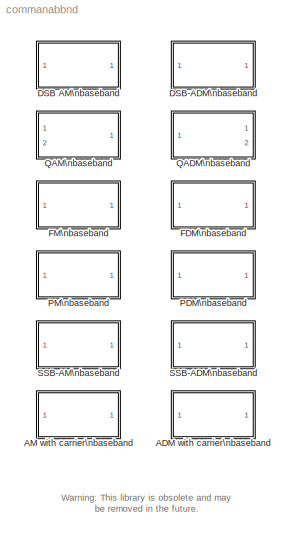
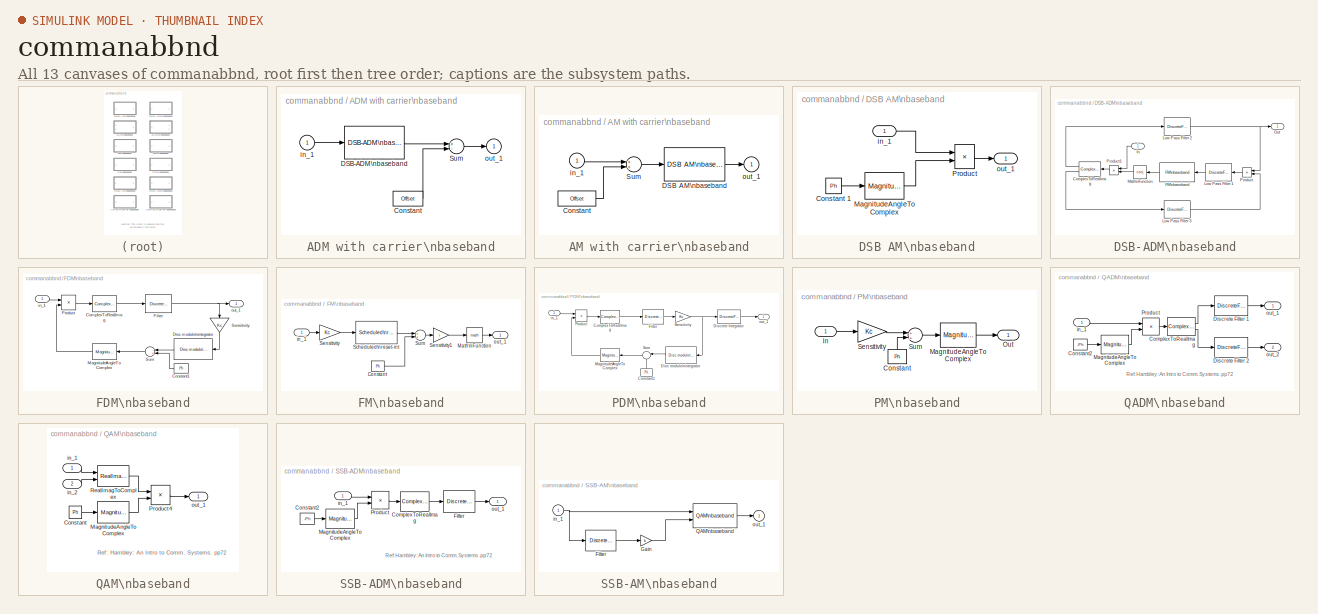
[diagram: thumbnail index - all 13 canvases of the model, root first then tree order]
MODEL commanabbnd
KIND library
BLOCK [SubSystem] ADM with carrier\nbaseband
  MaskCallbackString = ||||
  MaskDescription = Demodulate the complex envelope of an AM with TC modulated signal.
  MaskDisplay = plot(0,0,100,100,[5+4.5*[0:.3:10] 50 50 50 50+4.5*[0:10]],[85+10*[sin([0:.3:10]*pi/5).*sin([0:.3:10]*pi*2)] 85 99 75 10*sin([0:10]*pi/5)+85]);\ndisp('ADM w TC')
  MaskEnableString = on,on,on,on,on
  MaskHelp = This block demodulates the complex envelope of an AM with transport carrier modulated signal. This block requires you to specify a lowpass filter, which eliminates the carrier frequency and keeps the message signal. This block takes a complex signal.
  MaskIconFrame = on
  MaskIconOpaque = on
  MaskIconRotate = none
  MaskIconUnits = autoscale
  MaskPromptString = Output signal offset:|Lowpass filter numerator:|Lowpass filter denominator:|Initial Phase (rad):|Sample time (ts):
  MaskStyleString = edit,edit,edit,edit,edit
  MaskToolTipString = on,on,on,on,on
  MaskTunableValueString = on,on,on,on,on
  MaskType = ADM with TC CE
  MaskValueString = 1|[4.57 9.14 4.57]*.01|[1 -1.3108 .4936]|0|0.001
  MaskVarAliasString = ,,,,
  MaskVariables = Offset=@1;num=@2;den=@3;Ph=@4;ts=@5;
  MaskVisibilityString = on,on,on,on,on
  Ports = [1, 1]
  TreatAsAtomicUnit = off
BLOCK [Constant] ADM with carrier\nbaseband/Constant
  Value = Offset
BLOCK [Reference] ADM with carrier\nbaseband/DSB-ADM\nbaseband  REF=commanabbnd/DSB-ADM\nbaseband
  Ph = Ph
  Ports = [1, 1]
  SourceBlock = commanabbnd/DSB-ADM\nbaseband
  SourceType = DSB-SC ADM CE
  den = den
  num = num
  ts = ts
BLOCK [Sum] ADM with carrier\nbaseband/Sum
  Inputs = +-
  Ports = [2, 1]
BLOCK [Inport] ADM with carrier\nbaseband/in_1
BLOCK [Outport] ADM with carrier\nbaseband/out_1
  InitialOutput = 0
BLOCK [SubSystem] AM with carrier\nbaseband
  MaskCallbackString = |
  MaskDescription = Output complex envelope of an AM with transport carrier modulated signal.
  MaskDisplay = plot(0,0,100,100,[4.5*[0:10]+5 50 50 50 50+4.5*[0:.3:10]],[10*sin([0:10]*pi/5)+85 85 99 75 85+10*[sin([0:.3:10]*pi/5).*sin([0:.3:10]*pi*2)]]);\ndisp('AM w TC')
  MaskEnableString = on,on
  MaskHelp = This block causes the amplitude of the sinusoid carrier to depend on the message signal. An offset is added to the input signal before modulation. The output of this block is a complex signal. This modulation technique is not efficient.
  MaskIconFrame = on
  MaskIconOpaque = on
  MaskIconRotate = none
  MaskIconUnits = autoscale
  MaskPromptString = Input signal offset:|Initial phase (rad):
  MaskStyleString = edit,edit
  MaskToolTipString = on,on
  MaskTunableValueString = on,on
  MaskType = AM CE with TC
  MaskValueString = 1|0
  MaskVarAliasString = ,
  MaskVariables = Offset=@1;Ph=@2;
  MaskVisibilityString = on,on
  Ports = [1, 1]
  TreatAsAtomicUnit = off
BLOCK [Constant] AM with carrier\nbaseband/Constant
  Value = Offset
BLOCK [Reference] AM with carrier\nbaseband/DSB AM\nbaseband  REF=commanabbnd/DSB AM\nbaseband
  Ph = Ph
  Ports = [1, 1]
  SourceBlock = commanabbnd/DSB AM\nbaseband
  SourceType = DSB-SC AM CE
BLOCK [Sum] AM with carrier\nbaseband/Sum
  Ports = [2, 1]
BLOCK [Inport] AM with carrier\nbaseband/in_1
BLOCK [Outport] AM with carrier\nbaseband/out_1
  InitialOutput = 0
BLOCK [SubSystem] DSB AM\nbaseband
  MaskDescription = Output the complex envelope of a DSB-SC AM modulated signal.
  MaskDisplay = plot(0,0,100,100,[4.5*[0:10]+5 50 50 50 50+4.5*[0:.3:10]],[10*sin([0:10]*pi/5)+85 85 99 75 85+10*[sin([0:.3:10]*pi/5).*sin([0:.3:10]*pi*2)]]);\ndisp('DSB AM')
  MaskEnableString = on
  MaskHelp = This block outputs the complex envelope of the double-sideband suppressed-carrier amplitude modulated signal. The output is a complex signal.
  MaskIconFrame = on
  MaskIconOpaque = on
  MaskIconRotate = none
  MaskIconUnits = autoscale
  MaskInitialization = x1=cos(Ph);x2=sin(Ph);pi2=2*pi;\n
  MaskPromptString = Initial Phase (rad):
  MaskStyleString = edit
  MaskToolTipString = on
  MaskTunableValueString = on
  MaskType = DSB-SC AM CE
  MaskValueString = pi/2
  MaskVariables = Ph=@1;
  MaskVisibilityString = on
  Ports = [1, 1]
  TreatAsAtomicUnit = off
BLOCK [Constant] DSB AM\nbaseband/Constant 1
  Value = Ph
BLOCK [MagnitudeAngleToComplex] DSB AM\nbaseband/MagnitudeAngleToComplex
  ConstantPart = 1
  Input = Angle
  Ports = [1, 1]
BLOCK [Product] DSB AM\nbaseband/Product
  Ports = [2, 1]
BLOCK [Inport] DSB AM\nbaseband/in_1
BLOCK [Outport] DSB AM\nbaseband/out_1
  InitialOutput = 0
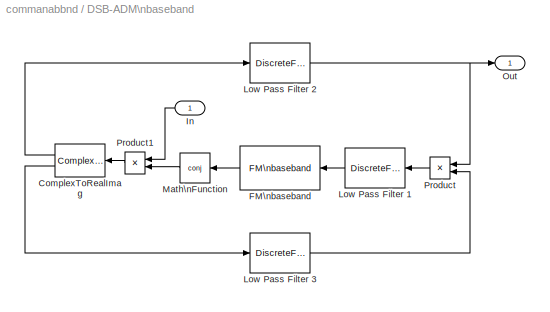
BLOCK [SubSystem] DSB-ADM\nbaseband
  MaskCallbackString = |||
  MaskDescription = Demodulate the complex envelope of a DSB-SC AM modulated signal.
  MaskDisplay = plot(0,0,100,100,[5+4.5*[0:.3:10] 50 50 50 50+4.5*[0:10]],[85+10*[sin([0:.3:10]*pi/5).*sin([0:.3:10]*pi*2)] 85 99 75 10*sin([0:10]*pi/5)+85]);\ndisp('DSB ADM')
  MaskEnableString = on,on,on,on
  MaskHelp = This block demodulates the complex envelope of a DSB-SC-AM modulated signal using Costas phase-locked loop method. This block requires you to specify a lowpass filter that eliminates the carrier frequency and keeps the message signal. This block takes a complex signal.
  MaskIconFrame = on
  MaskIconOpaque = on
  MaskIconRotate = none
  MaskIconUnits = autoscale
  MaskInitialization = pi2=pi*2;\n
  MaskPromptString = Lowpass filter numerator:|Lowpass filter denominator:|Initial phase (rad):|Sample time (sec):
  MaskStyleString = edit,edit,edit,edit
  MaskToolTipString = on,on,on,on
  MaskTunableValueString = on,on,on,on
  MaskType = DSB-SC ADM CE
  MaskValueString = [4.57 9.14 4.57]*.01|[1 -1.3108 .4936]|pi/2|0.001
  MaskVarAliasString = ,,,
  MaskVariables = num=@1;den=@2;Ph=@3;ts=@4;
  MaskVisibilityString = on,on,on,on
  Ports = [1, 1]
  TreatAsAtomicUnit = off
BLOCK [ComplexToRealImag] DSB-ADM\nbaseband/ComplexToRealImag
  Output = Real and imag
  Ports = [1, 2]
BLOCK [Reference] DSB-ADM\nbaseband/FM\nbaseband  REF=commanabbnd/FM\nbaseband
  HzPerV = 1
  Ph = Ph
  Ports = [1, 1]
  SourceBlock = commanabbnd/FM\nbaseband
  SourceType = FM CE
  td = Inf
  ts = ts
BLOCK [Inport] DSB-ADM\nbaseband/In
  MaskIconFrame = on
  MaskIconOpaque = on
  MaskIconRotate = none
  MaskIconUnits = autoscale
BLOCK [DiscreteFilter] DSB-ADM\nbaseband/Low Pass Filter 1
  Denominator = den
  Numerator = num
  SampleTime = ts
BLOCK [DiscreteFilter] DSB-ADM\nbaseband/Low Pass Filter 2
  Denominator = den
  Numerator = num
  SampleTime = ts
BLOCK [DiscreteFilter] DSB-ADM\nbaseband/Low Pass Filter 3
  Denominator = den
  Numerator = num
  SampleTime = ts
BLOCK [Math] DSB-ADM\nbaseband/Math\nFunction
  Operator = conj
  Ports = [1, 1]
BLOCK [Outport] DSB-ADM\nbaseband/Out
  InitialOutput = 0
BLOCK [Product] DSB-ADM\nbaseband/Product
  Ports = [2, 1]
BLOCK [Product] DSB-ADM\nbaseband/Product1
  Ports = [2, 1]
BLOCK [SubSystem] FDM\nbaseband
  MaskCallbackString = ||||
  MaskDescription = Demodulate the complex envelope of a FM signal.
  MaskDisplay = plot(0,0,100,100,[5+4.5*[0:.15:10] 50 50 50 50+4.5*[0:10]],[85+10*[sin([0:.15:10]*pi*2+cumsum(sin([0:.15:10]*pi/5))/2)] 85 99 75   10*sin([0:10]*pi/5)+85]);\ndisp('FDM')
  MaskEnableString = on,on,on,on,on
  MaskHelp = This block demodulates the complex envelope of a frequency modulated signal. The filter to be specified by the users is a lowpass filter which passes the signal message and eliminates the carrier signal.
  MaskIconFrame = on
  MaskIconOpaque = on
  MaskIconRotate = none
  MaskIconUnits = autoscale
  MaskInitialization = pi2=2*pi;\nKc=2*pi*HzPerVolt;
  MaskPromptString = Initial phase (rad):|Modulation constant (Hertz per volt):|Lowpass filter numerator:|Lowpass filter denominator:|Sample time (sec):
  MaskStyleString = edit,edit,edit,edit,edit
  MaskToolTipString = on,on,on,on,on
  MaskTunableValueString = on,on,on,on,on
  MaskType = FDM CE using PLL
  MaskValueString = 0|1|[4.57 9.14 4.57]*.01|[1 -1.3108 .4936]|0.001
  MaskVarAliasString = ,,,,
  MaskVariables = Ph=@1;HzPerVolt=@2;num=@3;den=@4;ts=@5;
  MaskVisibilityString = on,on,on,on,on
  Ports = [1, 1]
  TreatAsAtomicUnit = off
BLOCK [ComplexToRealImag] FDM\nbaseband/ComplexToRealImag
  Output = Imag
  Ports = [1, 1]
BLOCK [Constant] FDM\nbaseband/Constant1
  MaskIconFrame = on
  MaskIconOpaque = on
  MaskIconRotate = none
  MaskIconUnits = autoscale
  Value = Ph
BLOCK [Reference] FDM\nbaseband/Disc modulo\nintegrator  REF=commutil/Disc modulo\nintegrator
  Ports = [1, 1]
  SourceBlock = commutil/Disc modulo\nintegrator
  SourceType = Discrete-time modulo integrator
  init = 0
  modu = pi2
  ts = ts
BLOCK [DiscreteFilter] FDM\nbaseband/Filter
  Denominator = den
  Numerator = num
  SampleTime = ts
BLOCK [MagnitudeAngleToComplex] FDM\nbaseband/MagnitudeAngleToComplex
  ConstantPart = 1
  Input = Angle
  Ports = [1, 1]
BLOCK [Product] FDM\nbaseband/Product
  Ports = [2, 1]
BLOCK [Gain] FDM\nbaseband/Sensitivity
  Gain = Kc
  MaskIconFrame = on
  MaskIconOpaque = on
  MaskIconRotate = none
  MaskIconUnits = autoscale
BLOCK [Sum] FDM\nbaseband/Sum
  Inputs = -+
  MaskIconFrame = on
  MaskIconOpaque = on
  MaskIconRotate = none
  MaskIconUnits = autoscale
  Ports = [2, 1]
BLOCK [Inport] FDM\nbaseband/in_1
BLOCK [Outport] FDM\nbaseband/out_1
  InitialOutput = 0
BLOCK [SubSystem] FM\nbaseband
  MaskCallbackString = |||
  MaskDescription = Output the complex envelope of the FM signal.
  MaskDisplay = plot(0,0,100,100,[4.5*[0:10]+5 50 50 50 50+4.5*[0:.15:10]],[10*sin([0:10]*pi/5)+85 85 99 75 85+10*[sin([0:.15:10]*pi*2+cumsum(sin([0:.15:10]*pi/5))/2)]]);\ndisp('FM')
  MaskEnableString = on,on,on,on
  MaskHelp = This block outputs the complex envelope of the frequency modulated signal. The output is a complex signal. This block resets the phase at the very beginning of the symbol interval. For continuous-time simulation, the symbol interval can be set as infinity.
  MaskIconFrame = on
  MaskIconOpaque = on
  MaskIconRotate = none
  MaskIconUnits = autoscale
  MaskInitialization = Kc =2*pi*HzPerV;if isinf(td),td=realmax;end;\n
  MaskPromptString = Initial phase (rad):|Modulation constant (Hertz per volt):|Sample time (second):|Symbol interval (for digital mod, use Inf for analog mod):
  MaskStyleString = edit,edit,edit,edit
  MaskToolTipString = on,on,on,on
  MaskTunableValueString = on,on,on,on
  MaskType = FM CE
  MaskValueString = 0|1|0.001|Inf
  MaskVarAliasString = ,,,
  MaskVariables = Ph=@1;HzPerV=@2;ts=@3;td=@4;
  MaskVisibilityString = on,on,on,on
  Ports = [1, 1]
  TreatAsAtomicUnit = off
BLOCK [Constant] FM\nbaseband/Constant
  Value = Ph
BLOCK [Math] FM\nbaseband/Math\nFunction
  Ports = [1, 1]
BLOCK [Reference] FM\nbaseband/Scheduled\nreset-int  REF=commutil/Scheduled\nreset-int
  Ports = [1, 1]
  SourceBlock = commutil/Scheduled\nreset-int
  SourceType = Scheduled reset integration
  limit = 2*pi
  td = td
  ts = ts
BLOCK [Gain] FM\nbaseband/Sensitivity
  Gain = Kc
BLOCK [Gain] FM\nbaseband/Sensitivity1
  Gain = i
BLOCK [Sum] FM\nbaseband/Sum
  Ports = [2, 1]
BLOCK [Inport] FM\nbaseband/in_1
BLOCK [Outport] FM\nbaseband/out_1
  InitialOutput = 0
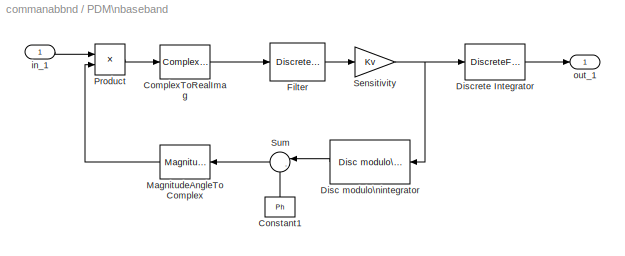
BLOCK [SubSystem] PDM\nbaseband
  MaskCallbackString = |||||
  MaskDescription = Demodulate the complex envelope of a PM modulated signal.
  MaskDisplay = plot(0,0,100,100,[5+4.5*[0:.15:10] 50 50 50 50+4.5*[0:10]],[85+10*[sin([0:.15:10]*pi*2+cumsum(sin([0:.15:10]*pi/5))/2)] 85 99 75   10*sin([0:10]*pi/5)+85]);\ndisp('PDM')
  MaskEnableString = on,on,on,on,on,on
  MaskHelp = This block demodulates the complex envelope of a PM modulated signal. This block uses a phase-locked loop with a multiplier phase detector.
  MaskIconFrame = on
  MaskIconOpaque = on
  MaskIconRotate = none
  MaskIconUnits = autoscale
  MaskInitialization = Kv=2*pi*HzPerVolt;
  MaskPromptString = Initial phase (rad):|Modulation constant (Radians per volt):|Lowpass filter numerator:|Lowpass filter denominator:|VCO gain (Hertz per volt):|Sample time (sec):
  MaskStyleString = edit,edit,edit,edit,edit,edit
  MaskToolTipString = on,on,on,on,on,on
  MaskTunableValueString = on,on,on,on,on,on
  MaskType = PLL PDM CE
  MaskValueString = 0|1|[4.57 9.14 4.57]*.01|[1 -1.3108 .4936]|1|0.001
  MaskVarAliasString = ,,,,,
  MaskVariables = Ph=@1;Kc=@2;num=@3;den=@4;HzPerVolt=@5;ts=@6;
  MaskVisibilityString = on,on,on,on,on,on
  Ports = [1, 1]
  TreatAsAtomicUnit = off
BLOCK [ComplexToRealImag] PDM\nbaseband/ComplexToRealImag
  Output = Imag
  Ports = [1, 1]
BLOCK [Constant] PDM\nbaseband/Constant1
  MaskIconFrame = on
  MaskIconOpaque = on
  MaskIconRotate = none
  MaskIconUnits = autoscale
  Value = Ph
BLOCK [Reference] PDM\nbaseband/Disc modulo\nintegrator  REF=commutil/Disc modulo\nintegrator
  Ports = [1, 1]
  SourceBlock = commutil/Disc modulo\nintegrator
  SourceType = Discrete-time modulo integrator
  init = 0
  modu = 2*pi
  ts = ts
BLOCK [DiscreteFilter] PDM\nbaseband/Discrete Integrator
  Denominator = [1 -1]*Kc
  Numerator = ts(1)
  SampleTime = ts
BLOCK [DiscreteFilter] PDM\nbaseband/Filter
  Denominator = den
  Numerator = num
  SampleTime = ts
BLOCK [MagnitudeAngleToComplex] PDM\nbaseband/MagnitudeAngleToComplex
  ConstantPart = 1
  Input = Angle
  Ports = [1, 1]
BLOCK [Product] PDM\nbaseband/Product
  Ports = [2, 1]
BLOCK [Gain] PDM\nbaseband/Sensitivity
  Gain = Kv
  MaskIconFrame = on
  MaskIconOpaque = on
  MaskIconRotate = none
  MaskIconUnits = autoscale
BLOCK [Sum] PDM\nbaseband/Sum
  IconShape = round
  Inputs = |--
  MaskIconFrame = on
  MaskIconOpaque = on
  MaskIconRotate = none
  MaskIconUnits = autoscale
  Ports = [2, 1]
BLOCK [Inport] PDM\nbaseband/in_1
BLOCK [Outport] PDM\nbaseband/out_1
  InitialOutput = 0
BLOCK [SubSystem] PM\nbaseband
  MaskCallbackString = |
  MaskDescription = Output the complex envelope of a PM modulated signal.
  MaskDisplay = plot(0,0,100,100,[4.5*[0:10]+5 50 50 50 50+4.5*[0:.15:10]],[10*sin([0:10]*pi/5)+85 85 99 75 85+10*[sin([0:.15:10]*pi*2+cumsum(sin([0:.15:10]*pi/5))/2)]]);\ndisp('PM')
  MaskEnableString = on,on
  MaskHelp = This block outputs the complex envelope of the phase modulated signal. The output of this block is a complex signal.
  MaskIconFrame = on
  MaskIconOpaque = on
  MaskIconRotate = none
  MaskIconUnits = autoscale
  MaskInitialization = \n
  MaskPromptString = Initial phase (rad):|Modulation constant (Radians per volt):
  MaskStyleString = edit,edit
  MaskToolTipString = on,on
  MaskTunableValueString = on,on
  MaskType = PM CE
  MaskValueString = 0|1
  MaskVarAliasString = ,
  MaskVariables = Ph=@1;Kc=@2;
  MaskVisibilityString = on,on
  Ports = [1, 1]
  TreatAsAtomicUnit = off
BLOCK [Constant] PM\nbaseband/Constant
  Value = Ph
BLOCK [Inport] PM\nbaseband/In
BLOCK [MagnitudeAngleToComplex] PM\nbaseband/MagnitudeAngleToComplex
  ConstantPart = 1
  Input = Angle
  Ports = [1, 1]
BLOCK [Outport] PM\nbaseband/Out
  InitialOutput = 0
BLOCK [Gain] PM\nbaseband/Sensitivity
  Gain = Kc
BLOCK [Sum] PM\nbaseband/Sum
  Ports = [2, 1]
BLOCK [SubSystem] QADM\nbaseband
  MaskCallbackString = |||
  MaskDescription = Demodulate the complex envelope of a QAM modulated signal into in-phase and quadrature components into 1st and 2nd out ports.
  MaskDisplay = plot(0,0,100,100,[5+4.5*[0:.3:10] 50 50 50 50+4.5*[0:10]],[85+10*[sin([0:.3:10]*pi/5).*sin([0:.3:10]*pi*2)] 85 99 75 10*sin([0:10]*pi/5)+85]);\ndisp('QADM')
  MaskEnableString = on,on,on,on
  MaskHelp = This block demodulates the quadratic multiplexed double-sideband suppressed-carrier amplitude modulation modulated signal using the QAM method. The filter to be specified is a lowpass filter that passes the signal message and eliminates the carrier signal.
  MaskIconFrame = on
  MaskIconOpaque = on
  MaskIconRotate = none
  MaskIconUnits = autoscale
  MaskInitialization = \n
  MaskPromptString = Lowpass filter numerator:|Lowpass filter denominator:|Initial phase (rad):|Sample time (sec):
  MaskStyleString = edit,edit,edit,edit
  MaskToolTipString = on,on,on,on
  MaskTunableValueString = on,on,on,on
  MaskType = QM DSB-SC ADM CE
  MaskValueString = [4.57 9.14 4.57]*.01|[1 -1.3108 .4936]|0|0.001
  MaskVarAliasString = ,,,
  MaskVariables = num=@1;den=@2;Ph=@3;ts=@4;
  MaskVisibilityString = on,on,on,on
  Ports = [1, 2]
  TreatAsAtomicUnit = off
BLOCK [ComplexToRealImag] QADM\nbaseband/ComplexToRealImag
  Output = Real and imag
  Ports = [1, 2]
BLOCK [Constant] QADM\nbaseband/Constant2
  Value = -Ph
BLOCK [DiscreteFilter] QADM\nbaseband/Discrete Filter 1
  Denominator = den
  Numerator = num
  SampleTime = ts
BLOCK [DiscreteFilter] QADM\nbaseband/Discrete Filter 2
  Denominator = den
  Numerator = num
  SampleTime = ts
BLOCK [MagnitudeAngleToComplex] QADM\nbaseband/MagnitudeAngleToComplex
  ConstantPart = 1
  Input = Angle
  Ports = [1, 1]
BLOCK [Product] QADM\nbaseband/Product
  Ports = [2, 1]
BLOCK [Inport] QADM\nbaseband/in_1
BLOCK [Outport] QADM\nbaseband/out_1
  InitialOutput = 0
BLOCK [Outport] QADM\nbaseband/out_2
  InitialOutput = 0
  Port = 2
BLOCK [SubSystem] QAM\nbaseband
  MaskDescription = Modulate the in-phase and quadrature component signal from the 1st and 2nd input ports, baseband simulation.
  MaskDisplay = plot(0,0,100,100,[4.5*[0:10]+5 50 50 50 50+4.5*[0:.3:10]],[10*sin([0:10]*pi/5)+85 85 99 75 85+10*[sin([0:.3:10]*pi/5).*sin([0:.3:10]*pi*2)]]);\ndisp('QAM')
  MaskEnableString = on
  MaskHelp = This block outputs the complex envelope of the quadratic multiplexed double-sideband suppressed-carrier amplitude modulated signal. The 1st and 2nd input ports input the in-phase and quadrature components. The output is a complex signal.
  MaskIconFrame = on
  MaskIconOpaque = on
  MaskIconRotate = none
  MaskIconUnits = autoscale
  MaskInitialization = \n
  MaskPromptString = Initial phase (rad):
  MaskStyleString = edit
  MaskToolTipString = on
  MaskTunableValueString = on
  MaskType = QM DSB-SC AM CE
  MaskValueString = 0
  MaskVariables = Ph=@1;
  MaskVisibilityString = on
  Ports = [2, 1]
  TreatAsAtomicUnit = off
BLOCK [Constant] QAM\nbaseband/Constant
  Value = Ph
BLOCK [MagnitudeAngleToComplex] QAM\nbaseband/MagnitudeAngleToComplex
  ConstantPart = 1
  Input = Angle
  Ports = [1, 1]
BLOCK [Product] QAM\nbaseband/Product4
  Ports = [2, 1]
BLOCK [RealImagToComplex] QAM\nbaseband/RealImagToComplex
  Input = Real and imag
  Ports = [2, 1]
BLOCK [Inport] QAM\nbaseband/in_1
BLOCK [Inport] QAM\nbaseband/in_2
  Port = 2
BLOCK [Outport] QAM\nbaseband/out_1
  InitialOutput = 0
BLOCK [SubSystem] SSB-ADM\nbaseband
  MaskCallbackString = |||
  MaskDescription = Demodulate the complex envelope of a SSB AM modulated signal.
  MaskDisplay = plot(0,0,100,100,[5+4.5*[0:.3:10] 50 50 50 50+4.5*[0:10]],[85+10*[sin([0:.3:10]*pi/5).*sin([0:.3:10]*pi*2)] 85 99 75 10*sin([0:10]*pi/5)+85]);\ndisp('SSB ADM')
  MaskEnableString = on,on,on,on
  MaskHelp = This block demodulates the complex envelope of a SSB-SC-AM modulated signal. This block requires you to specify a lowpass filter which eliminates the carrier frequency and keeps the message signal. This block takes a complex signal.
  MaskIconFrame = on
  MaskIconOpaque = on
  MaskIconRotate = none
  MaskIconUnits = autoscale
  MaskInitialization = x1=cos(-Ph);x2=sin(-Ph);\n
  MaskPromptString = Lowpass filter numerator:|Lowpass filter denominator:|Initial phase (rad):|Sample time (sec):
  MaskStyleString = edit,edit,edit,edit
  MaskToolTipString = on,on,on,on
  MaskTunableValueString = on,on,on,on
  MaskType = SSB-SC ADM CE
  MaskValueString = [4.57 9.14 4.57]*.01|[1 -1.3108 .4936]|0|0.001
  MaskVarAliasString = ,,,
  MaskVariables = num=@1;den=@2;Ph=@3;ts=@4;
  MaskVisibilityString = on,on,on,on
  Ports = [1, 1]
  TreatAsAtomicUnit = off
BLOCK [ComplexToRealImag] SSB-ADM\nbaseband/ComplexToRealImag
  Output = Real
  Ports = [1, 1]
BLOCK [Constant] SSB-ADM\nbaseband/Constant2
  Value = -Ph
BLOCK [DiscreteFilter] SSB-ADM\nbaseband/Filter
  Denominator = den
  Numerator = num
  SampleTime = ts
BLOCK [MagnitudeAngleToComplex] SSB-ADM\nbaseband/MagnitudeAngleToComplex
  ConstantPart = 1
  Input = Angle
  Ports = [1, 1]
BLOCK [Product] SSB-ADM\nbaseband/Product
  Ports = [2, 1]
BLOCK [Inport] SSB-ADM\nbaseband/in_1
BLOCK [Outport] SSB-ADM\nbaseband/out_1
  InitialOutput = 0
BLOCK [SubSystem] SSB-AM\nbaseband
  MaskCallbackString = ||||
  MaskDescription = Output complex envelope of a SSB AM modulated signal.
  MaskDisplay = plot(0,0,100,100,[4.5*[0:10]+5 50 50 50 50+4.5*[0:.3:10]],[10*sin([0:10]*pi/5)+85 85 99 75 85+10*[sin([0:.3:10]*pi/5).*sin([0:.3:10]*pi*2)]]);\ndisp('SSB AM')
  MaskEnableString = on,on,on,on,on
  MaskHelp = This block outputs the complex envelope of a SSB AM modulated signal. This block uses the Hilbert transfer filter. Because the Hilbert transform filter is a non-causal filter, you must use a positive time delay in the implementation. The input signal bandwidth is needed in designing the Hilbert transform filter. You can specify the modulation to be an USB or LSB modulation.
  MaskIconFrame = on
  MaskIconOpaque = on
  MaskIconRotate = none
  MaskIconUnits = autoscale
  MaskInitialization = k=-1;if sd(1)=='l',k=1;end;if ban>1/ts, ban=1/ts-ts;end;[num,den]=hilbiir(ts,dly,ban);pi2=2*pi;pih=pi/2;\n
  MaskPromptString = Initial Phase (rad):|Bandwidth of the input signal (Hz):|Time delay for Hilbert transform filter (sec):|Sample time (sec):|\"upper\" sideband or \"lower\" sideband:
  MaskStyleString = edit,edit,edit,edit,edit
  MaskToolTipString = on,on,on,on,on
  MaskTunableValueString = on,on,on,on,on
  MaskType = SSB-AM CE using Hilbert transform filter.
  MaskValueString = 0|10|0.01|0.001|'upper'
  MaskVarAliasString = ,,,,
  MaskVariables = Ph=@1;ban=@2;dly=@3;ts=@4;sd=@5;
  MaskVisibilityString = on,on,on,on,on
  Ports = [1, 1]
  TreatAsAtomicUnit = off
BLOCK [DiscreteFilter] SSB-AM\nbaseband/Filter
  Denominator = den
  Numerator = num
  SampleTime = ts
BLOCK [Gain] SSB-AM\nbaseband/Gain
  Gain = k
BLOCK [Reference] SSB-AM\nbaseband/QAM\nbaseband  REF=commanabbnd/QAM\nbaseband
  Ph = Ph
  Ports = [2, 1]
  SourceBlock = commanabbnd/QAM\nbaseband
  SourceType = QM DSB-SC AM CE
BLOCK [Inport] SSB-AM\nbaseband/in_1
BLOCK [Outport] SSB-AM\nbaseband/out_1
  InitialOutput = 0
ANNOTATION (root): Warning: This library is obsolete and may\nbe removed in the future.
ANNOTATION QADM\nbaseband: Ref: Hambley: An Intro to Comm. Systems. pp72
ANNOTATION QAM\nbaseband: Ref: Hambley: An Intro to Comm. Systems. pp72
ANNOTATION SSB-ADM\nbaseband: Ref: Hambley: An Intro to Comm. Systems. pp72
LINE ADM with carrier\nbaseband/Constant:1 -> ADM with carrier\nbaseband/Sum:2
LINE ADM with carrier\nbaseband/DSB-ADM\nbaseband:1 -> ADM with carrier\nbaseband/Sum:1
LINE ADM with carrier\nbaseband/Sum:1 -> ADM with carrier\nbaseband/out_1:1
LINE ADM with carrier\nbaseband/in_1:1 -> ADM with carrier\nbaseband/DSB-ADM\nbaseband:1
LINE AM with carrier\nbaseband/Constant:1 -> AM with carrier\nbaseband/Sum:2
LINE AM with carrier\nbaseband/DSB AM\nbaseband:1 -> AM with carrier\nbaseband/out_1:1
LINE AM with carrier\nbaseband/Sum:1 -> AM with carrier\nbaseband/DSB AM\nbaseband:1
LINE AM with carrier\nbaseband/in_1:1 -> AM with carrier\nbaseband/Sum:1
LINE DSB AM\nbaseband/Constant 1:1 -> DSB AM\nbaseband/MagnitudeAngleToComplex:1
LINE DSB AM\nbaseband/MagnitudeAngleToComplex:1 -> DSB AM\nbaseband/Product:2
LINE DSB AM\nbaseband/Product:1 -> DSB AM\nbaseband/out_1:1
LINE DSB AM\nbaseband/in_1:1 -> DSB AM\nbaseband/Product:1
LINE DSB-ADM\nbaseband/ComplexToRealImag:1 -> DSB-ADM\nbaseband/Low Pass Filter 2:1
LINE DSB-ADM\nbaseband/ComplexToRealImag:2 -> DSB-ADM\nbaseband/Low Pass Filter 3:1
LINE DSB-ADM\nbaseband/FM\nbaseband:1 -> DSB-ADM\nbaseband/Math\nFunction:1
LINE DSB-ADM\nbaseband/In:1 -> DSB-ADM\nbaseband/Product1:1
LINE DSB-ADM\nbaseband/Low Pass Filter 1:1 -> DSB-ADM\nbaseband/FM\nbaseband:1
NET DSB-ADM\nbaseband/Low Pass Filter 2:1 -> DSB-ADM\nbaseband/Out:1, DSB-ADM\nbaseband/Product:1
LINE DSB-ADM\nbaseband/Low Pass Filter 3:1 -> DSB-ADM\nbaseband/Product:2
LINE DSB-ADM\nbaseband/Math\nFunction:1 -> DSB-ADM\nbaseband/Product1:2
LINE DSB-ADM\nbaseband/Product1:1 -> DSB-ADM\nbaseband/ComplexToRealImag:1
LINE DSB-ADM\nbaseband/Product:1 -> DSB-ADM\nbaseband/Low Pass Filter 1:1
LINE FDM\nbaseband/ComplexToRealImag:1 -> FDM\nbaseband/Filter:1
LINE FDM\nbaseband/Constant1:1 -> FDM\nbaseband/Sum:2
LINE FDM\nbaseband/Disc modulo\nintegrator:1 -> FDM\nbaseband/Sum:1
NET FDM\nbaseband/Filter:1 -> FDM\nbaseband/Sensitivity:1, FDM\nbaseband/out_1:1
LINE FDM\nbaseband/MagnitudeAngleToComplex:1 -> FDM\nbaseband/Product:2
LINE FDM\nbaseband/Product:1 -> FDM\nbaseband/ComplexToRealImag:1
LINE FDM\nbaseband/Sensitivity:1 -> FDM\nbaseband/Disc modulo\nintegrator:1
LINE FDM\nbaseband/Sum:1 -> FDM\nbaseband/MagnitudeAngleToComplex:1
LINE FDM\nbaseband/in_1:1 -> FDM\nbaseband/Product:1
LINE FM\nbaseband/Constant:1 -> FM\nbaseband/Sum:2
LINE FM\nbaseband/Math\nFunction:1 -> FM\nbaseband/out_1:1
LINE FM\nbaseband/Scheduled\nreset-int:1 -> FM\nbaseband/Sum:1
LINE FM\nbaseband/Sensitivity1:1 -> FM\nbaseband/Math\nFunction:1
LINE FM\nbaseband/Sensitivity:1 -> FM\nbaseband/Scheduled\nreset-int:1
LINE FM\nbaseband/Sum:1 -> FM\nbaseband/Sensitivity1:1
LINE FM\nbaseband/in_1:1 -> FM\nbaseband/Sensitivity:1
LINE PDM\nbaseband/ComplexToRealImag:1 -> PDM\nbaseband/Filter:1
LINE PDM\nbaseband/Constant1:1 -> PDM\nbaseband/Sum:2
LINE PDM\nbaseband/Disc modulo\nintegrator:1 -> PDM\nbaseband/Sum:1
LINE PDM\nbaseband/Discrete Integrator:1 -> PDM\nbaseband/out_1:1
LINE PDM\nbaseband/Filter:1 -> PDM\nbaseband/Sensitivity:1
LINE PDM\nbaseband/MagnitudeAngleToComplex:1 -> PDM\nbaseband/Product:2
LINE PDM\nbaseband/Product:1 -> PDM\nbaseband/ComplexToRealImag:1
NET PDM\nbaseband/Sensitivity:1 -> PDM\nbaseband/Disc modulo\nintegrator:1, PDM\nbaseband/Discrete Integrator:1
LINE PDM\nbaseband/Sum:1 -> PDM\nbaseband/MagnitudeAngleToComplex:1
LINE PDM\nbaseband/in_1:1 -> PDM\nbaseband/Product:1
LINE PM\nbaseband/Constant:1 -> PM\nbaseband/Sum:2
LINE PM\nbaseband/In:1 -> PM\nbaseband/Sensitivity:1
LINE PM\nbaseband/MagnitudeAngleToComplex:1 -> PM\nbaseband/Out:1
LINE PM\nbaseband/Sensitivity:1 -> PM\nbaseband/Sum:1
LINE PM\nbaseband/Sum:1 -> PM\nbaseband/MagnitudeAngleToComplex:1
LINE QADM\nbaseband/ComplexToRealImag:1 -> QADM\nbaseband/Discrete Filter 1:1
LINE QADM\nbaseband/ComplexToRealImag:2 -> QADM\nbaseband/Discrete Filter 2:1
LINE QADM\nbaseband/Constant2:1 -> QADM\nbaseband/MagnitudeAngleToComplex:1
LINE QADM\nbaseband/Discrete Filter 1:1 -> QADM\nbaseband/out_1:1
LINE QADM\nbaseband/Discrete Filter 2:1 -> QADM\nbaseband/out_2:1
LINE QADM\nbaseband/MagnitudeAngleToComplex:1 -> QADM\nbaseband/Product:2
LINE QADM\nbaseband/Product:1 -> QADM\nbaseband/ComplexToRealImag:1
LINE QADM\nbaseband/in_1:1 -> QADM\nbaseband/Product:1
LINE QAM\nbaseband/Constant:1 -> QAM\nbaseband/MagnitudeAngleToComplex:1
LINE QAM\nbaseband/MagnitudeAngleToComplex:1 -> QAM\nbaseband/Product4:2
LINE QAM\nbaseband/Product4:1 -> QAM\nbaseband/out_1:1
LINE QAM\nbaseband/RealImagToComplex:1 -> QAM\nbaseband/Product4:1
LINE QAM\nbaseband/in_1:1 -> QAM\nbaseband/RealImagToComplex:1
LINE QAM\nbaseband/in_2:1 -> QAM\nbaseband/RealImagToComplex:2
LINE SSB-ADM\nbaseband/ComplexToRealImag:1 -> SSB-ADM\nbaseband/Filter:1
LINE SSB-ADM\nbaseband/Constant2:1 -> SSB-ADM\nbaseband/MagnitudeAngleToComplex:1
LINE SSB-ADM\nbaseband/Filter:1 -> SSB-ADM\nbaseband/out_1:1
LINE SSB-ADM\nbaseband/MagnitudeAngleToComplex:1 -> SSB-ADM\nbaseband/Product:2
LINE SSB-ADM\nbaseband/Product:1 -> SSB-ADM\nbaseband/ComplexToRealImag:1
LINE SSB-ADM\nbaseband/in_1:1 -> SSB-ADM\nbaseband/Product:1
LINE SSB-AM\nbaseband/Filter:1 -> SSB-AM\nbaseband/Gain:1
LINE SSB-AM\nbaseband/Gain:1 -> SSB-AM\nbaseband/QAM\nbaseband:2
LINE SSB-AM\nbaseband/QAM\nbaseband:1 -> SSB-AM\nbaseband/out_1:1
NET SSB-AM\nbaseband/in_1:1 -> SSB-AM\nbaseband/Filter:1, SSB-AM\nbaseband/QAM\nbaseband:1
note: NET lines group one-source signal fan-out (src -> all destinations, sorted); 1:1 wires keep LINE
